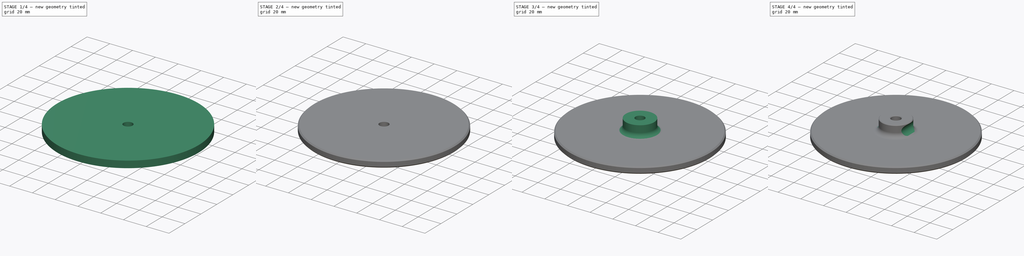
[diagram: build sequence overview — one tinted view per stage of 4, left to right]
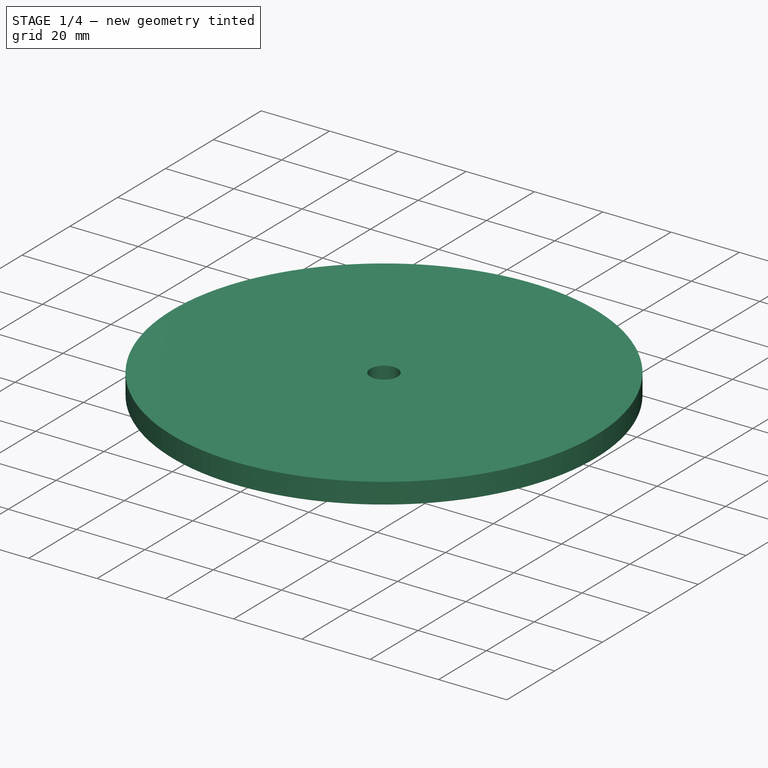
[diagram: stage 1 of 4 — iso view after this stage's code; geometry added in this stage tinted green]
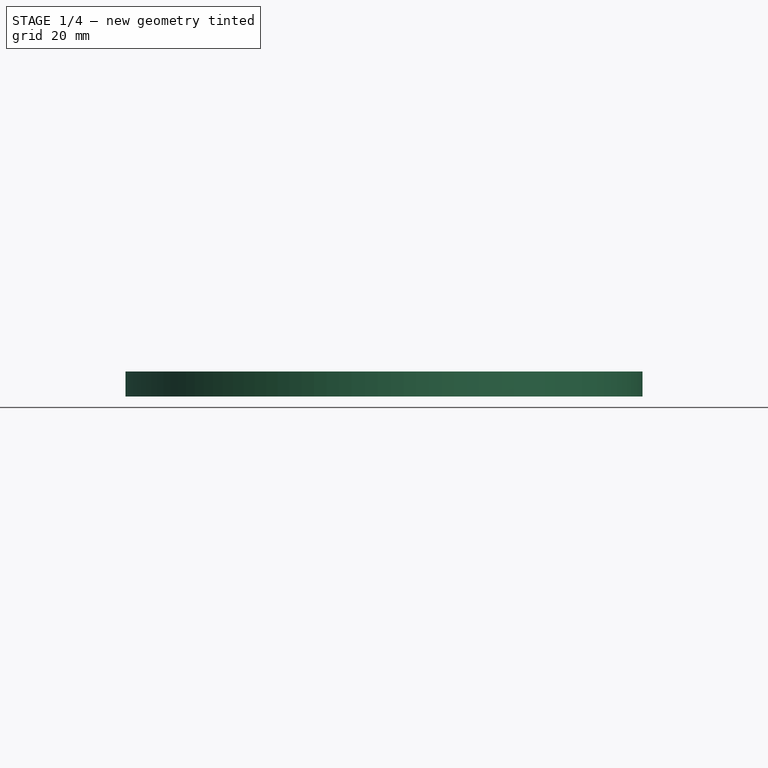
[diagram: stage 1 of 4 — front view after this stage's code; geometry added in this stage tinted green]
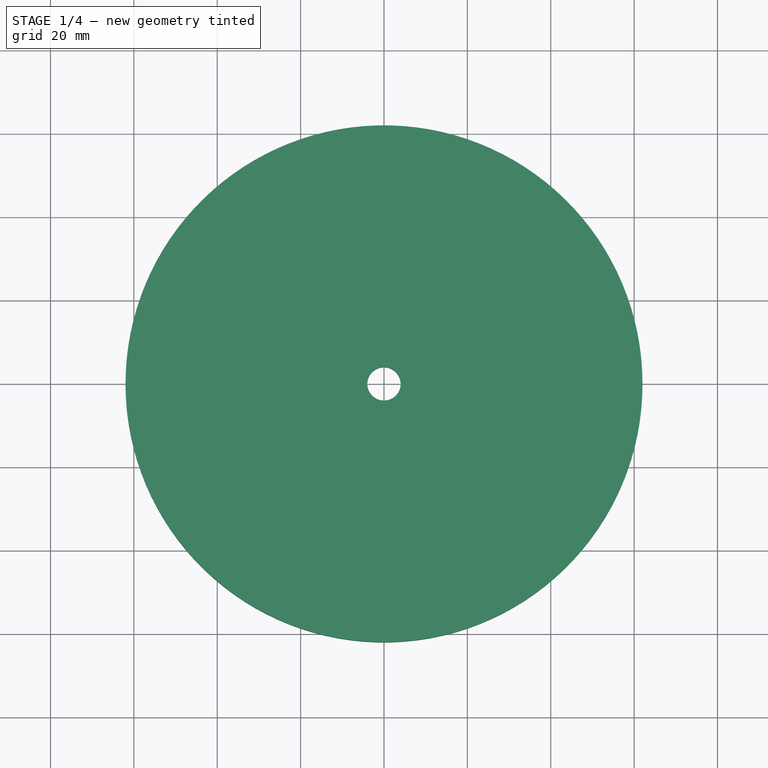
[diagram: stage 1 of 4 — top view after this stage's code; geometry added in this stage tinted green]
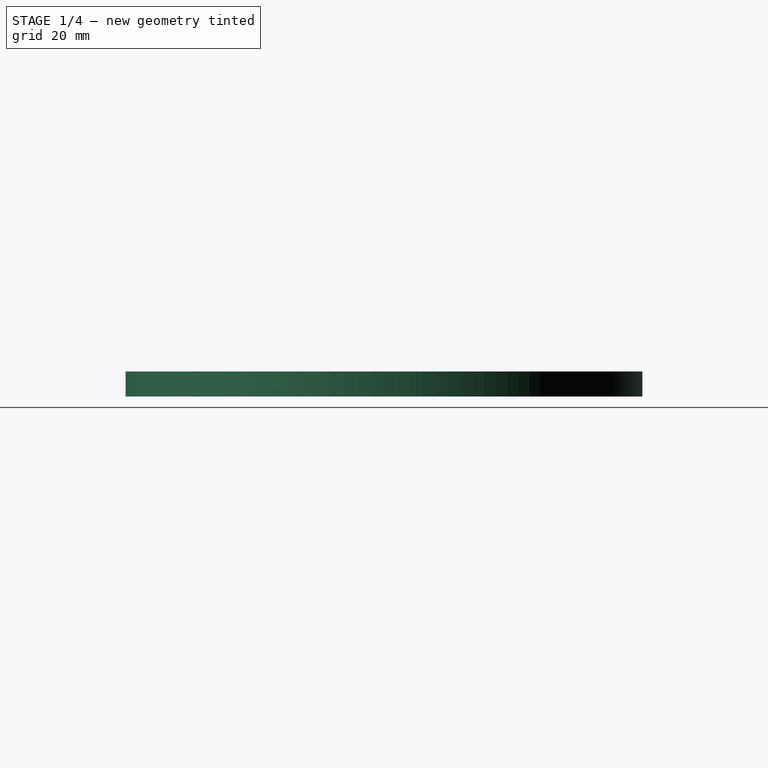
[diagram: stage 1 of 4 — right view after this stage's code; geometry added in this stage tinted green]
FCSTD DOCUMENT  (FreeCAD 0.19R21300 +2313 (Git))
Label: right-clamp
License: All rights reserved
LicenseURL: http://en.wikipedia.org/wiki/All_rights_reserved
objects: Sketcher::SketchObject×5, PartDesign::Pocket×3, PartDesign::Chamfer×3, PartDesign::Draft×2, PartDesign::ShapeBinder×1, PartDesign::Pad×1, PartDesign::Revolution×1, PartDesign::Fillet×1, PartDesign::Body×1
note: 40 computed .brp shape members not serialized (recipe doc carries the construction recipe); baked Part::Feature solids carry a one-line shape summary decoded from their .brp

FEATURE [PartDesign::ShapeBinder] CopyMirrored002
  TraceSupport = false
FEATURE [Sketcher::SketchObject] Sketch011
  MapMode = 5
  Placement = pos=(0,0,1.75) rot=(0,0,1;0rad)
  Support = -> [CopyMirrored002]
  sketch-geometry (2):
    g0: Circle CenterX=0 CenterY=0 CenterZ=0 NormalX=0 NormalY=0 NormalZ=1 AngleXU=0 Radius=62
    g1: Circle [constr] CenterX=0 CenterY=0 CenterZ=0 NormalX=0 NormalY=0 NormalZ=1 AngleXU=0 Radius=52
  constraints (4):
    c: Coincident(g0,g-1)
    c: Radius(g0) = 62
    c: Coincident(g1,g0)
    c: Radius(g1) = 52
FEATURE [PartDesign::Pad] Pad004
  AllowMultiFace = false
  ClaimChildren = false
  Length = 6
  Length2 = 100
  Profile = -> Sketch011
  Suppress = false
  Type = 0
FEATURE [Sketcher::SketchObject] Sketch015
  MapMode = 5
  Placement = pos=(0,0,-8.25) rot=(1,0,0;3.14159rad)
  sketch-geometry (1):
    g0: Circle CenterX=0 CenterY=0 CenterZ=0 NormalX=0 NormalY=0 NormalZ=1 AngleXU=0 Radius=4
  constraints (2):
    c: Coincident(g0,g-1)
    c: Diameter(g0) = 8
FEATURE [PartDesign::Pocket] Pocket004
  AllowMultiFace = false
  BaseFeature = -> Pad004
  ClaimChildren = false
  Length = 5
  Length2 = 100
  Midplane = true
  Profile = -> Sketch015
  Reversed = true
  Suppress = false
  Type = 1
FEATURE [Sketcher::SketchObject] Sketch021
  MapMode = 5
  Placement = pos=(0,0,1.75) rot=(1,0,0;3.14159rad)
  sketch-geometry (2):
    g0: Circle CenterX=0 CenterY=0 CenterZ=0 NormalX=0 NormalY=0 NormalZ=1 AngleXU=0 Radius=53.5
    g1: Circle CenterX=0 CenterY=0 CenterZ=0 NormalX=0 NormalY=0 NormalZ=1 AngleXU=0 Radius=56.5
  constraints (4):
    c: Coincident(g0,g-1)
    c: Coincident(g1,g0)
    c: Diameter(g0) = 107
    c: Diameter(g1) = 113
FEATURE [PartDesign::Pocket] Pocket006
  AllowMultiFace = false
  BaseFeature = -> Pocket004
  ClaimChildren = false
  Length = 3
  Length2 = 100
  Profile = -> Sketch021
  Suppress = false
  Type = 0
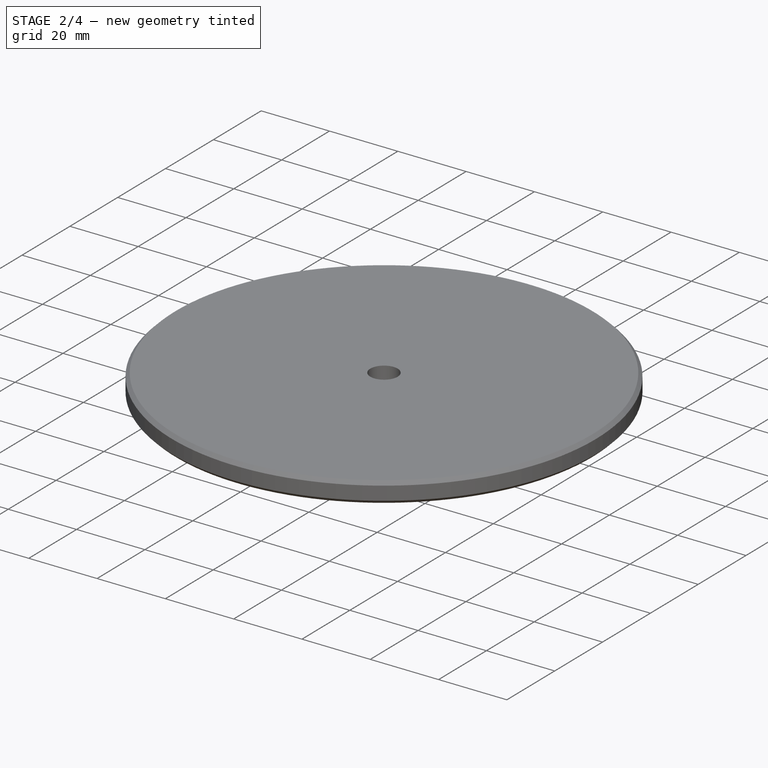
[diagram: stage 2 of 4 — iso view after this stage's code; geometry added in this stage tinted green]
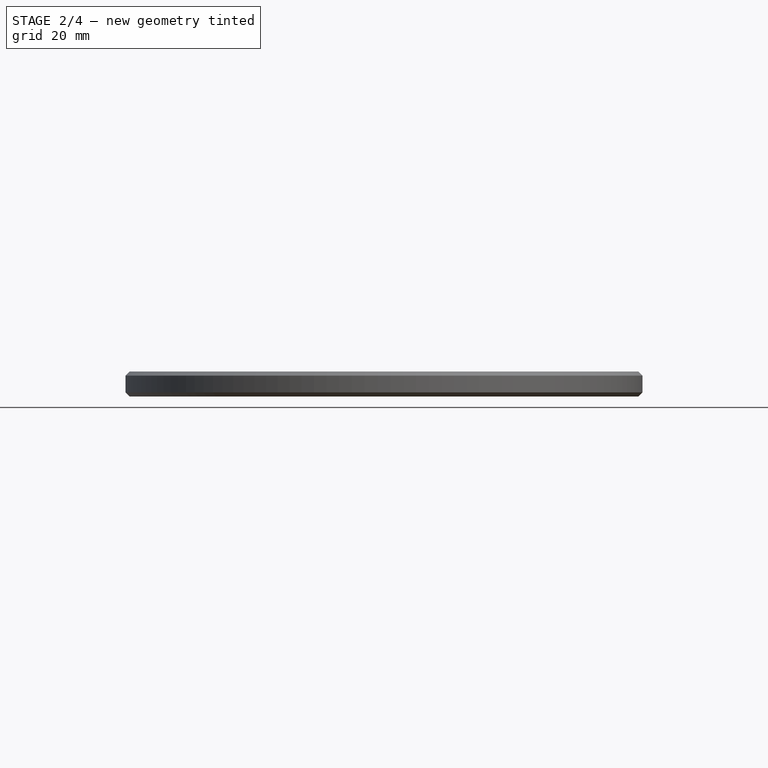
[diagram: stage 2 of 4 — front view after this stage's code; geometry added in this stage tinted green]
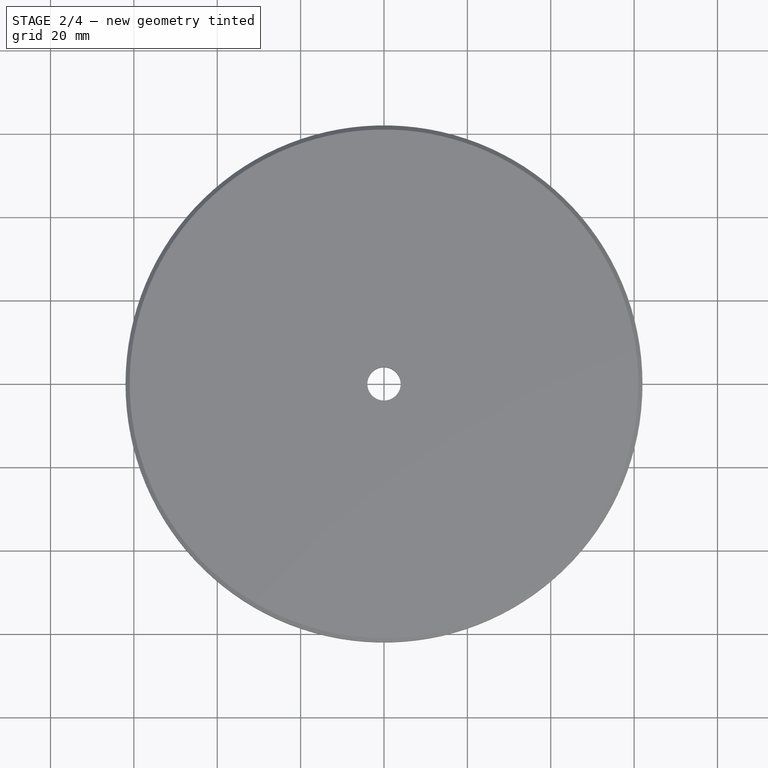
[diagram: stage 2 of 4 — top view after this stage's code; geometry added in this stage tinted green]
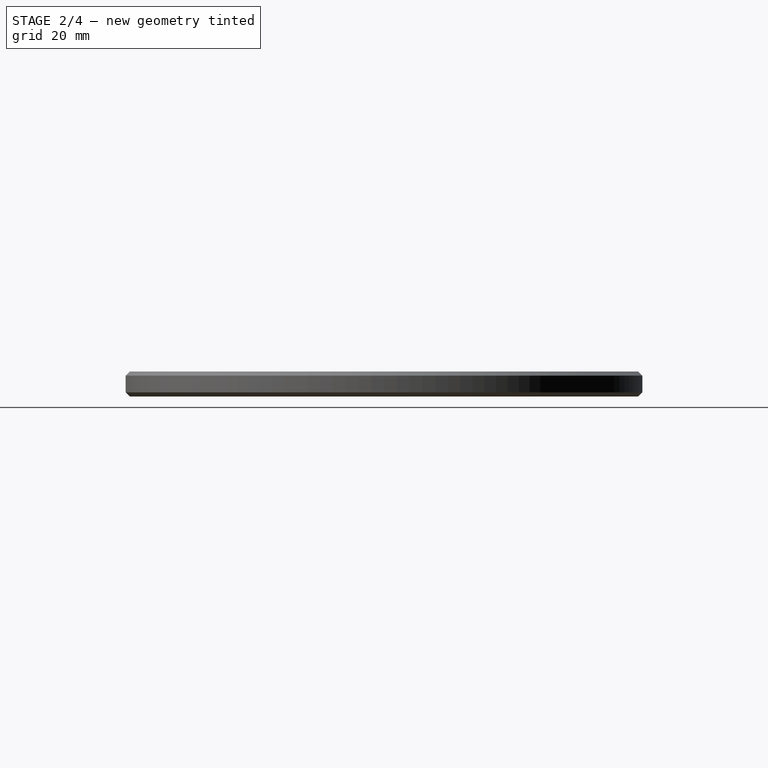
[diagram: stage 2 of 4 — right view after this stage's code; geometry added in this stage tinted green]
FEATURE [PartDesign::Draft] Draft003
  Angle = 5
  Base = -> Pocket006 [Face8]
  BaseFeature = -> Pocket006
  NeutralPlane = -> Pocket006 [Face3]
  SupportTransform = false
  Suppress = false
FEATURE [PartDesign::Draft] Draft004
  Angle = 5
  Base = -> Draft003 [Face8]
  BaseFeature = -> Draft003
  NeutralPlane = -> Draft003 [Face7]
  SupportTransform = false
  Suppress = false
FEATURE [PartDesign::Chamfer] Chamfer001
  Angle = 45
  Base = -> Draft004 [Face1]
  BaseFeature = -> Draft004
  ChamferType = 0
  FlipDirection = false
  Size = 1
  Size2 = 1
  SupportTransform = true
  Suppress = false
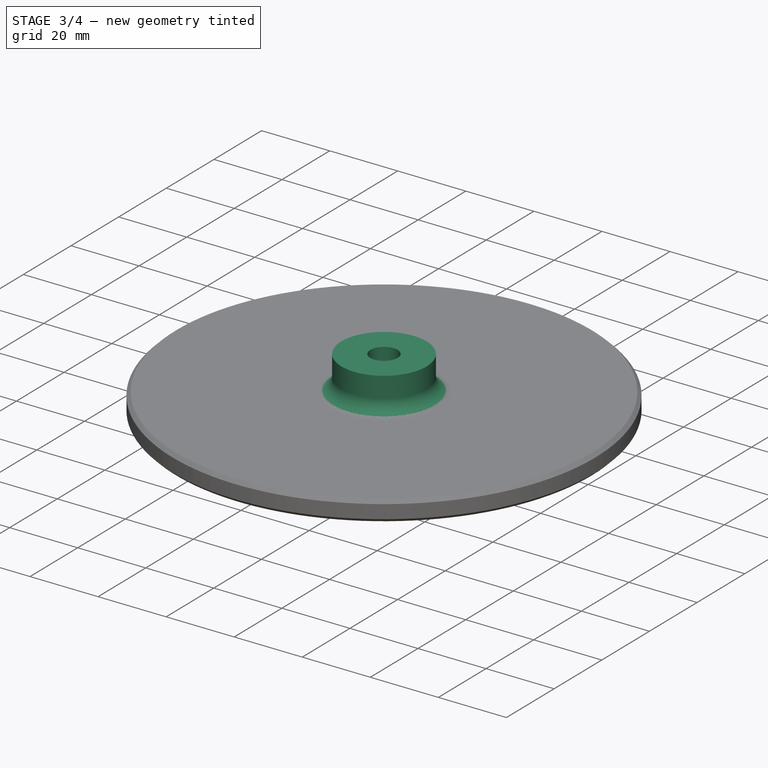
[diagram: stage 3 of 4 — iso view after this stage's code; geometry added in this stage tinted green]
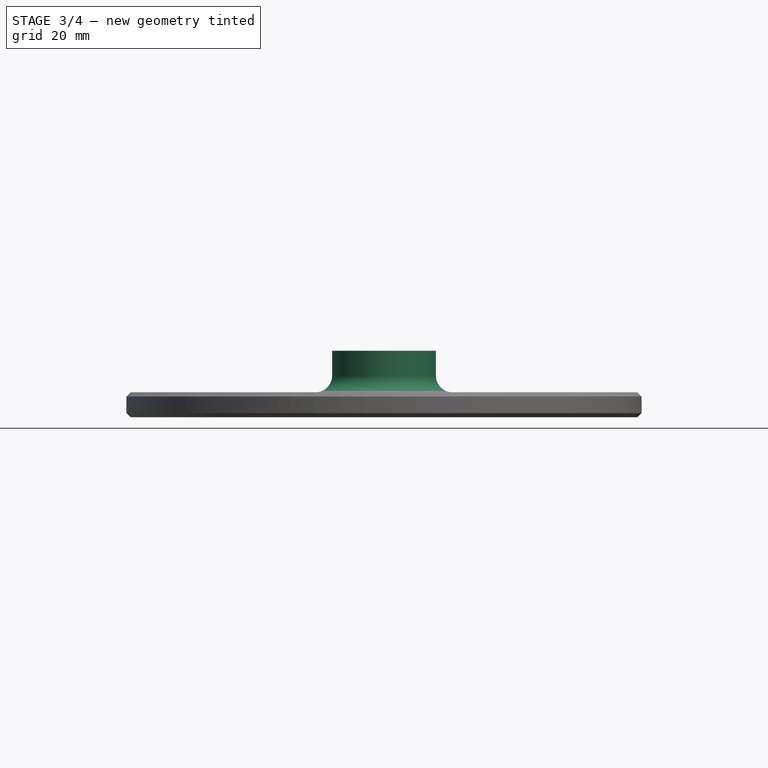
[diagram: stage 3 of 4 — front view after this stage's code; geometry added in this stage tinted green]
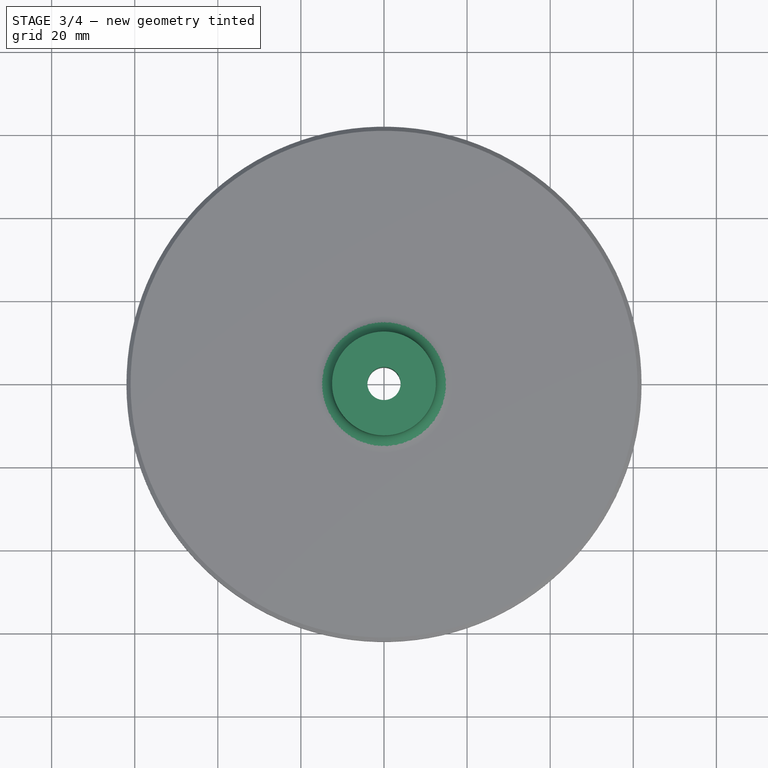
[diagram: stage 3 of 4 — top view after this stage's code; geometry added in this stage tinted green]
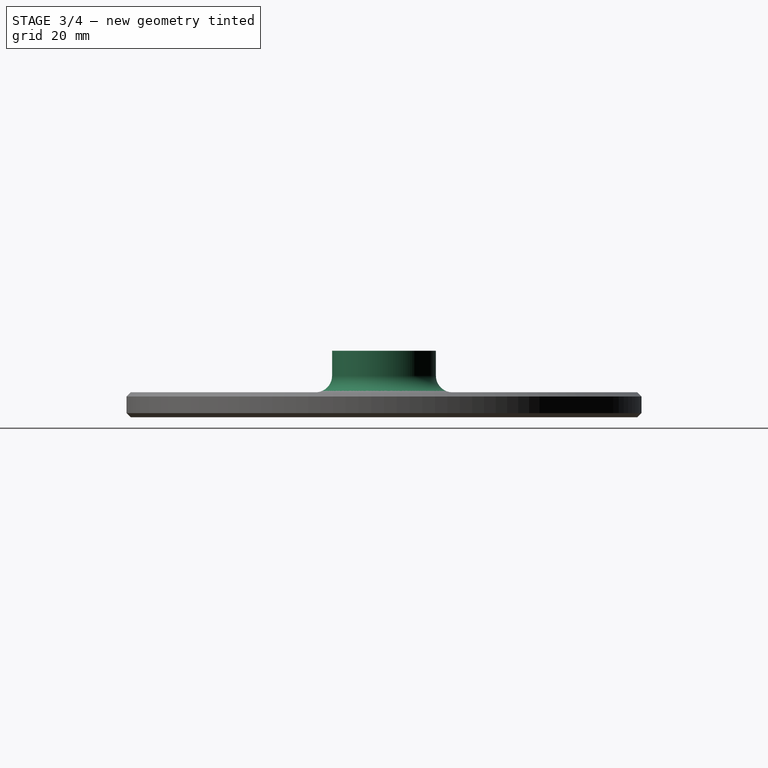
[diagram: stage 3 of 4 — right view after this stage's code; geometry added in this stage tinted green]
FEATURE [Sketcher::SketchObject] Sketch
  ExternalGeometry = -> [Chamfer001]
  MapMode = 5
  Placement = pos=(0,0,0) rot=(0.57735,0.57735,0.57735;2.0944rad)
  Support = -> [YZ_Plane005]
  sketch-geometry (9):
    g0: LineSegment StartX=4 StartY=7.75 StartZ=0 EndX=4 EndY=12.75 EndZ=0
    g1: LineSegment StartX=4 StartY=12.75 StartZ=0 EndX=5 EndY=12.75 EndZ=0
    g2: LineSegment StartX=5 StartY=12.75 StartZ=0 EndX=5 EndY=14.75 EndZ=0
    g3: LineSegment StartX=5 StartY=14.75 StartZ=0 EndX=4 EndY=14.75 EndZ=0
    g4: LineSegment StartX=4 StartY=14.75 StartZ=0 EndX=4 EndY=17.75 EndZ=0
    g5: LineSegment StartX=4 StartY=17.75 StartZ=0 EndX=12.5 EndY=17.75 EndZ=0
    g6: LineSegment StartX=12.5 StartY=17.75 StartZ=0 EndX=12.5 EndY=7.75 EndZ=0
    g7: LineSegment StartX=12.5 StartY=7.75 StartZ=0 EndX=4 EndY=7.75 EndZ=0
    g8: GeomPoint X=-12.5 Y=7.75 Z=0
  constraints (24):
    c: Coincident(g0,g-3)
    c: Vertical(g0)
    c: Coincident(g0,g1)
    c: Horizontal(g1)
    c: Coincident(g1,g2)
    c: Vertical(g2)
    c: Coincident(g2,g3)
    c: Horizontal(g3)
    c: Coincident(g3,g4)
    c: Vertical(g4)
    c: Coincident(g4,g5)
    c: Horizontal(g5)
    c: Coincident(g5,g6)
    c: Vertical(g6)
    c: Coincident(g6,g7)
    c: Coincident(g7,g0)
    c: Horizontal(g7)
    c: DistanceY(g6,g6) = 10
    c: Symmetric(g6,g8,g-2)
    c: DistanceX(g8,g6) = 25
    c: DistanceY(g0,g0) = 5
    c: DistanceY(g2,g2) = 2
    c: DistanceX(g1,g1) = 1
    c: Vertical(g3,g0)
FEATURE [PartDesign::Revolution] Revolution
  Angle = 360
  Axis = (-2e-16,3e-16,1)
  Base = (0,0,0)
  BaseFeature = -> Chamfer001
  ClaimChildren = false
  Profile = -> Sketch
  ReferenceAxis = -> Sketch [V_Axis]
  Reversed = true
  Suppress = false
FEATURE [PartDesign::Fillet] Fillet
  Base = -> Revolution [Edge9]
  BaseFeature = -> Revolution
  Radius = 4
  SupportTransform = true
  Suppress = false
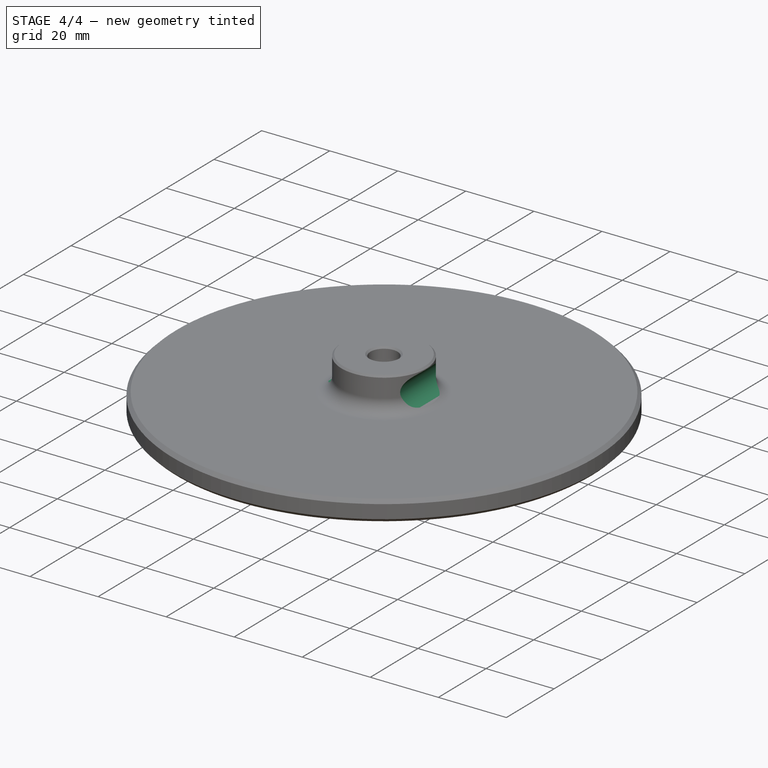
[diagram: stage 4 of 4 — iso view after this stage's code; geometry added in this stage tinted green]
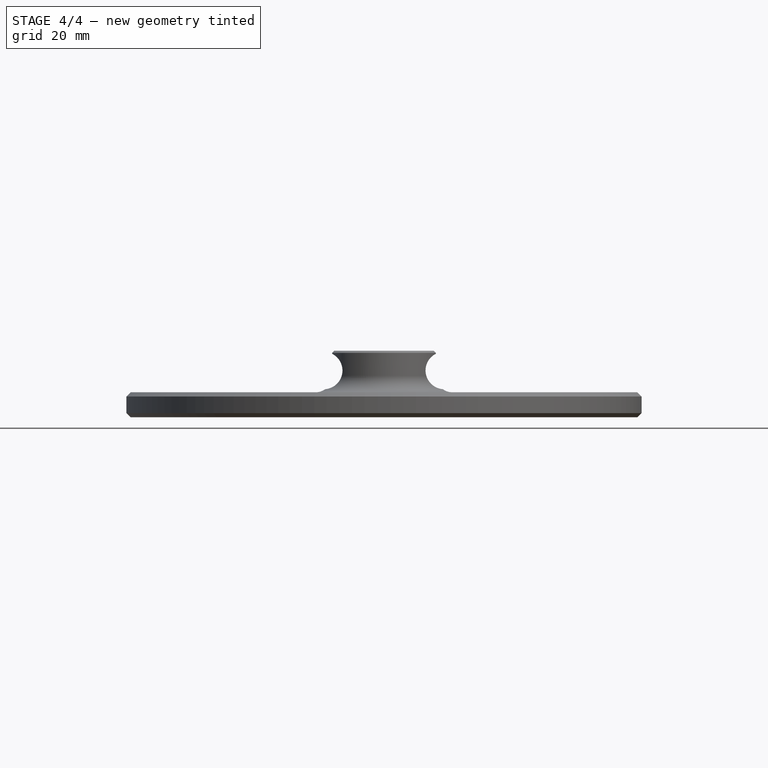
[diagram: stage 4 of 4 — front view after this stage's code; geometry added in this stage tinted green]
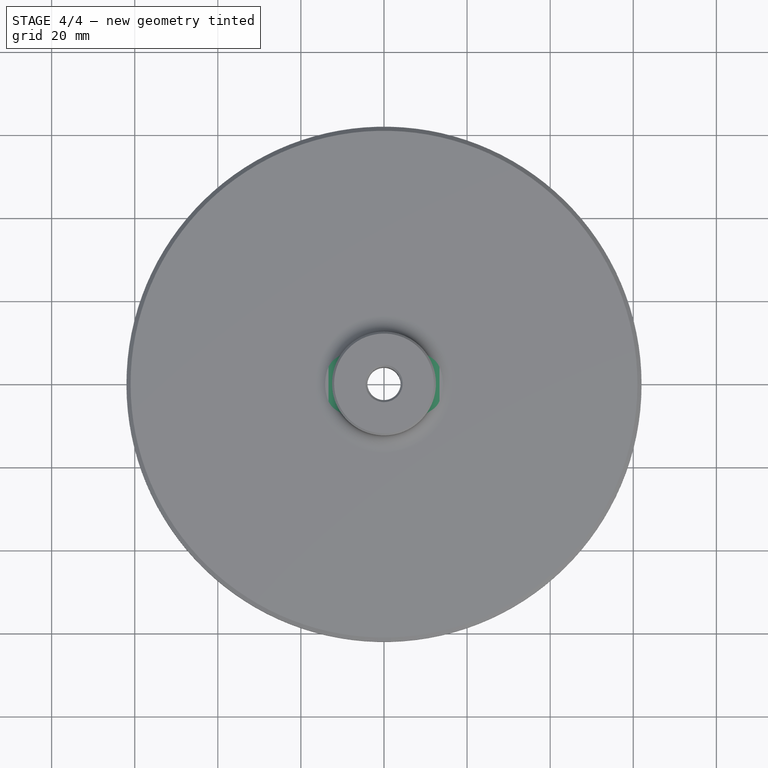
[diagram: stage 4 of 4 — top view after this stage's code; geometry added in this stage tinted green]
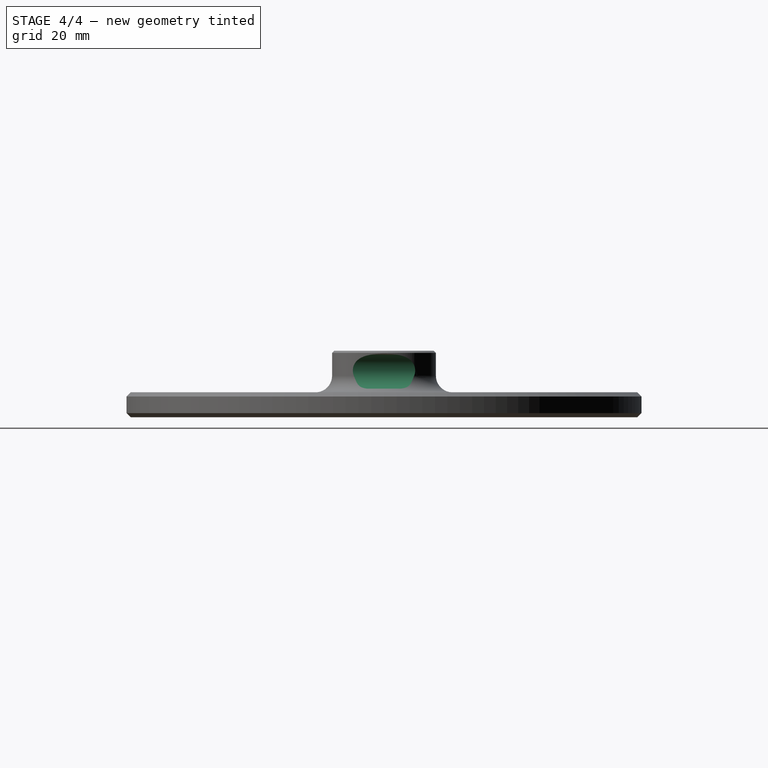
[diagram: stage 4 of 4 — right view after this stage's code; geometry added in this stage tinted green]
FEATURE [Sketcher::SketchObject] Sketch022
  MapMode = 5
  Placement = pos=(0,0,0) rot=(1,0,0;1.5708rad)
  Support = -> [XZ_Plane005]
  sketch-geometry (2):
    g0: Circle CenterX=14.5 CenterY=13 CenterZ=0 NormalX=0 NormalY=0 NormalZ=1 AngleXU=0 Radius=4.5
    g1: Circle CenterX=-14.5 CenterY=13 CenterZ=0 NormalX=0 NormalY=0 NormalZ=1 AngleXU=0 Radius=4.5
  constraints (5):
    c: Equal(g1,g0)
    c: Symmetric(g1,g0,g-2)
    c: DistanceY(g-1,g0) = 13
    c: DistanceX(g-1,g0) = 14.5
    c: Diameter(g0) = 9
FEATURE [PartDesign::Pocket] Pocket
  BaseFeature = -> Fillet
  ClaimChildren = false
  Length = 5
  Length2 = 100
  Midplane = true
  Profile = -> Sketch022
  Suppress = false
  Type = 1
FEATURE [PartDesign::Chamfer] Chamfer
  Angle = 45
  Base = -> Pocket [Face9]
  BaseFeature = -> Pocket
  ChamferType = 0
  FlipDirection = false
  Size = 0.5
  Size2 = 1
  SupportTransform = true
  Suppress = false
FEATURE [PartDesign::Chamfer] Chamfer002
  Angle = 45
  Base = -> Chamfer [Face23,Edge32]
  BaseFeature = -> Chamfer
  ChamferType = 0
  FlipDirection = false
  Size = 0.5
  Size2 = 1
  SupportTransform = true
  Suppress = false
FEATURE [PartDesign::Body] Body002  label="Body"
  ExportMode = 0
  Group = -> [CopyMirrored002,Sketch011,Pad004,Sketch015,Pocket004,Sketch021,Pocket006,Draft003,Draft004,Chamfer001,Sketch,Revolution,Fillet,Sketch022,Pocket,Chamfer,Chamfer002]
  Origin = -> Origin005
  SingleSolid = true
  Tip = -> Chamfer002
  _ExportChildren = -> [CopyMirrored002,Pad004,Pocket004,Pocket006,Draft003,Draft004,Chamfer001,Revolution,Fillet,Pocket,Chamfer,Chamfer002]
  _GroupVersion = 1
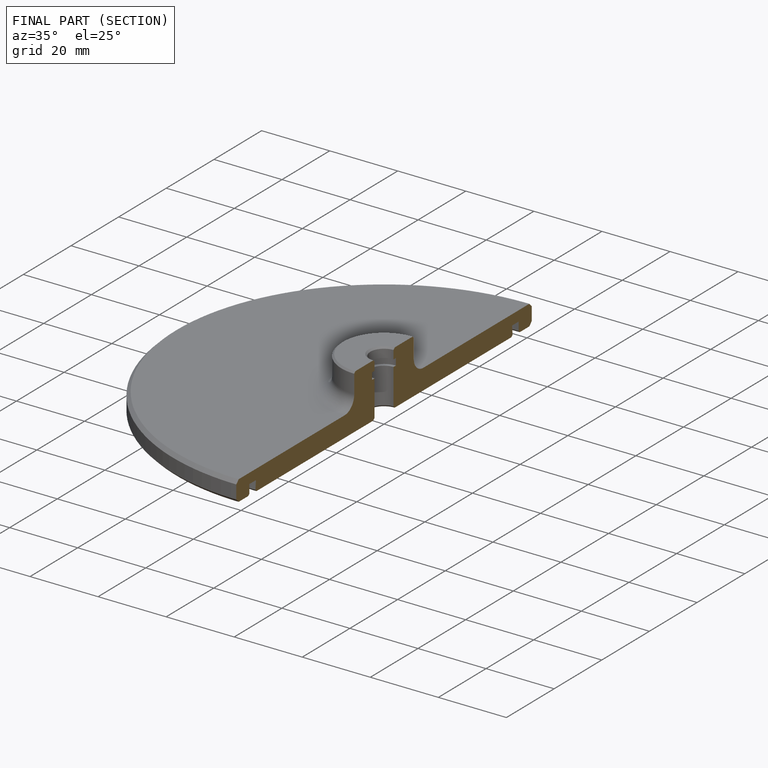
[diagram: finished part — half-section view (interior)]
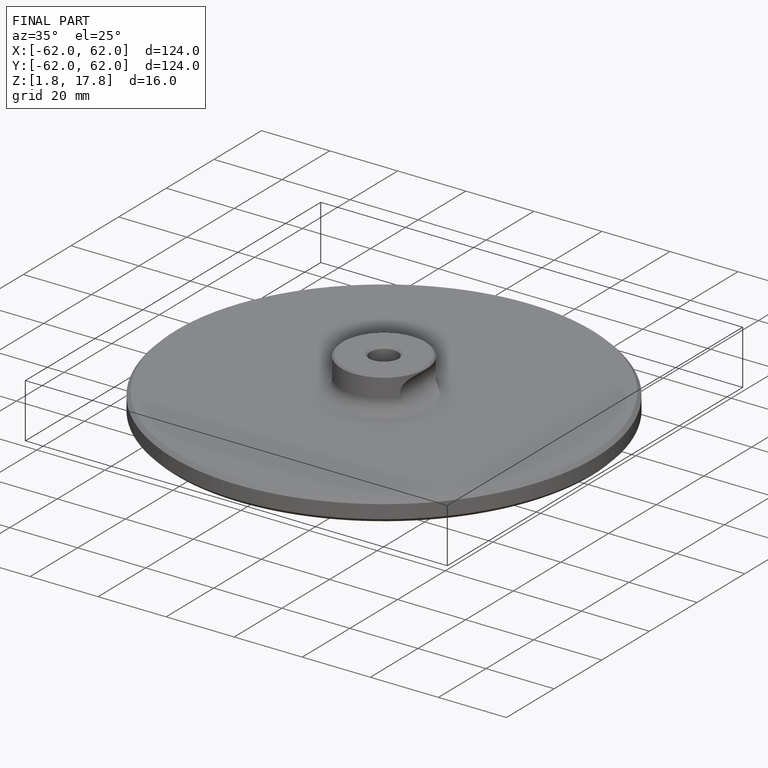
[diagram: finished part — iso view with bounding-box wireframe]
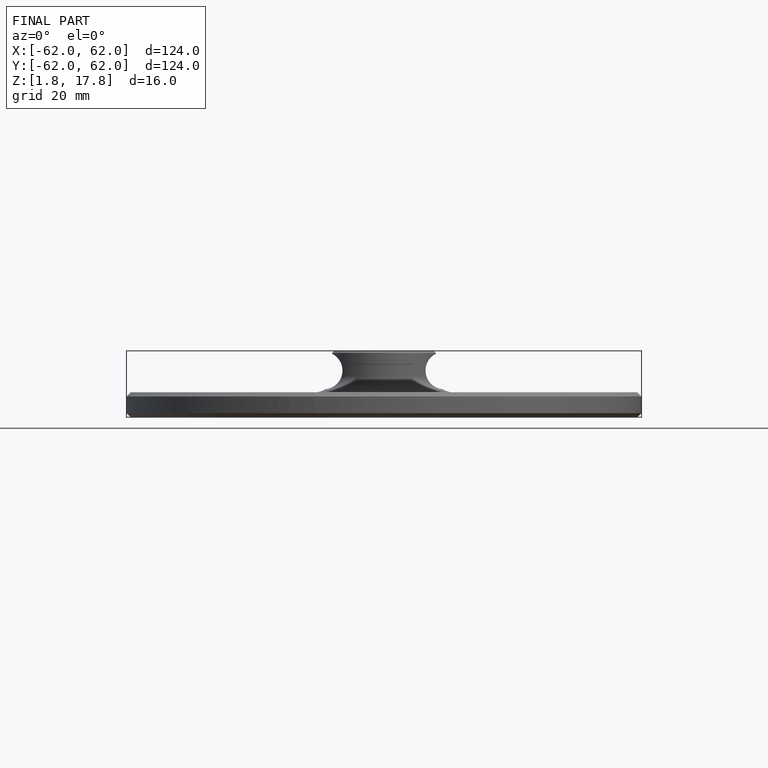
[diagram: finished part — front view with bounding-box wireframe]
